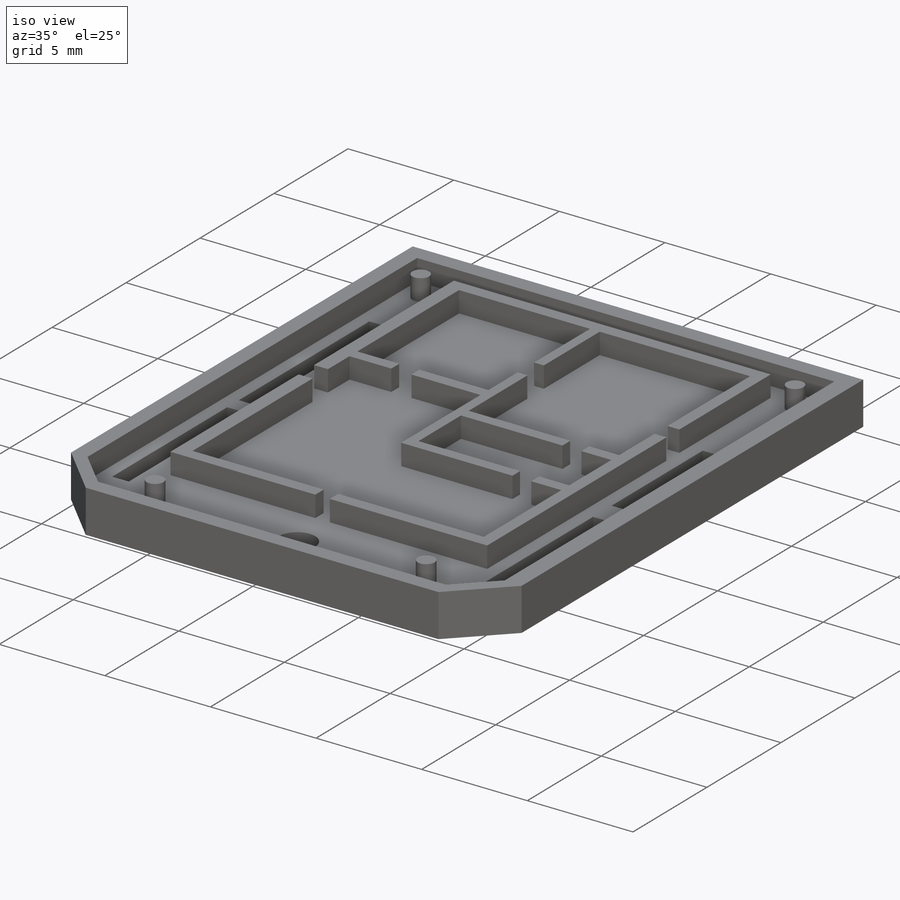
[diagram: iso view]
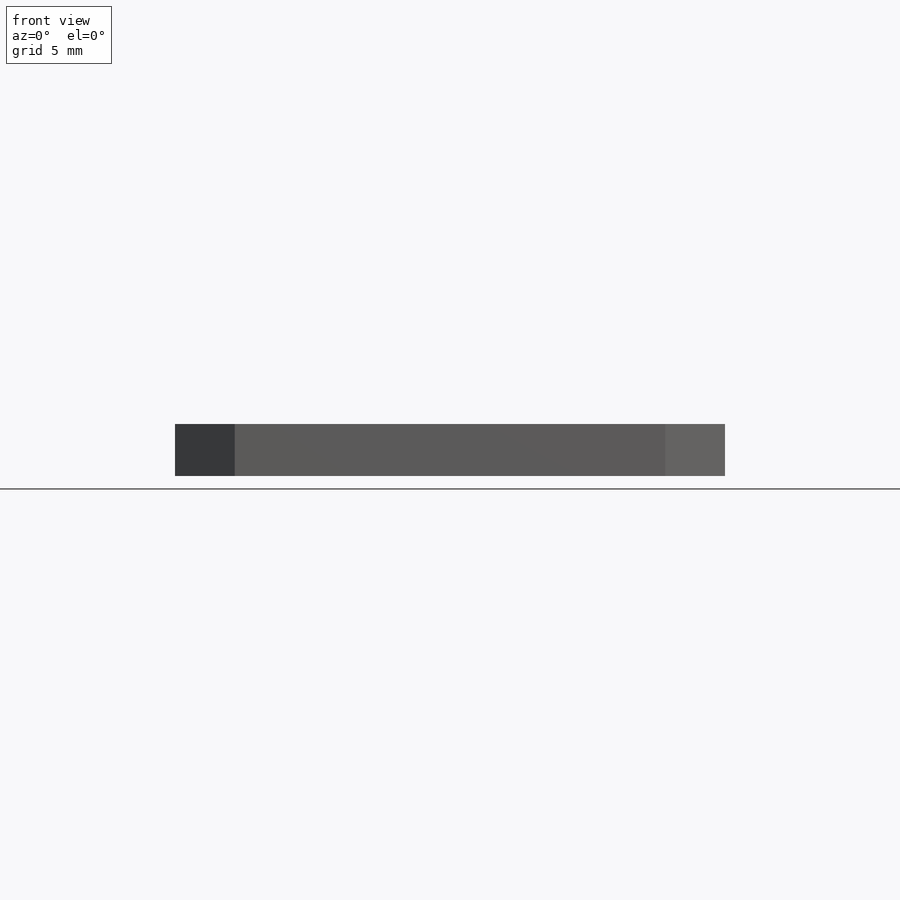
[diagram: front view]
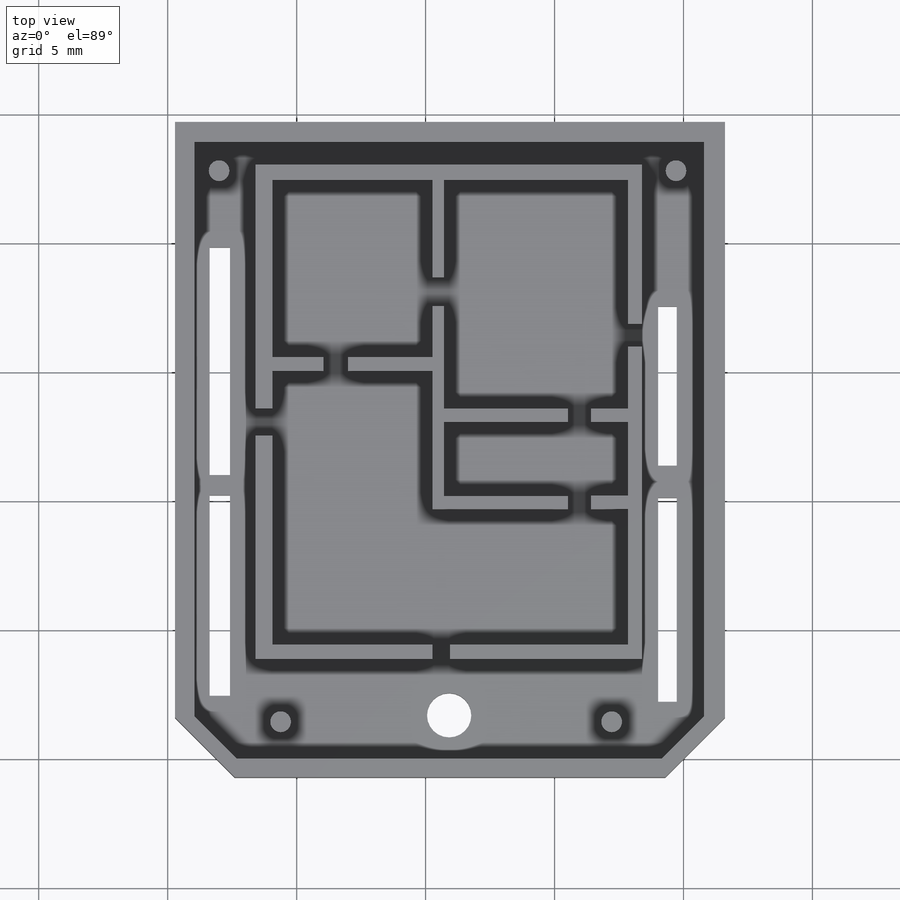
[diagram: top view]
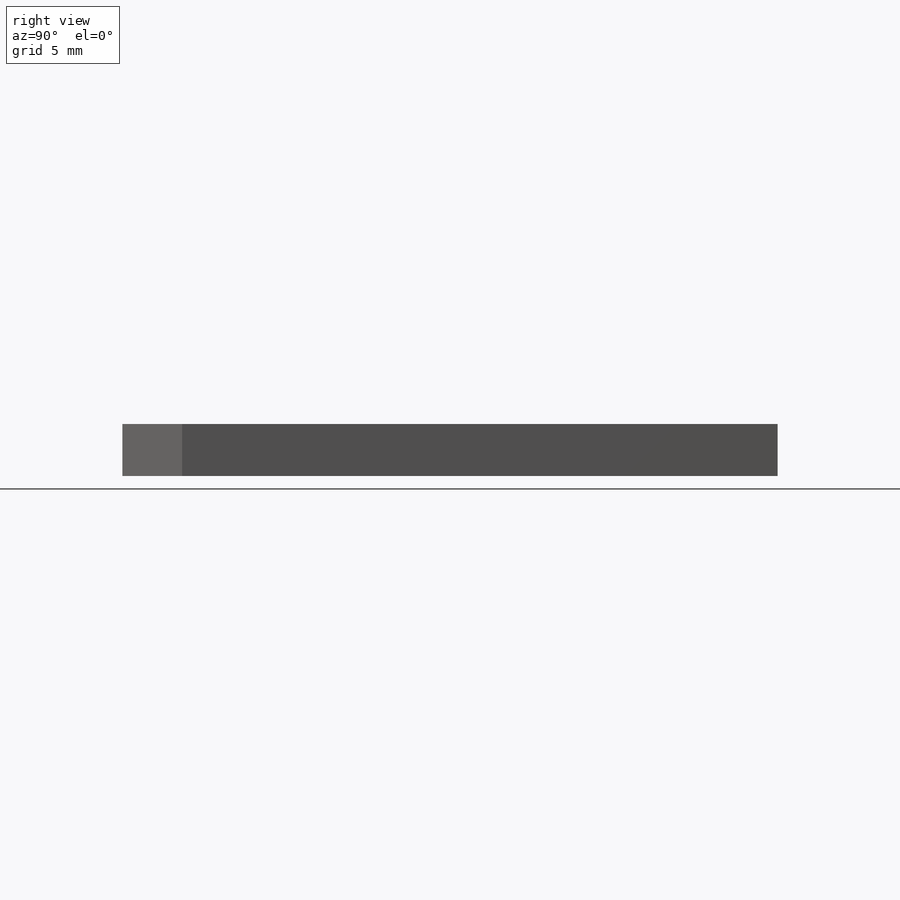
[diagram: right view]
SOLIDWORKS PART (.sldprt)
format: sldprt  version: not decoded by parser v0  size: 346,112 bytes
history: native  units: mm
features: sketch x6, extrude x3, cut_extrude x3, material x1 (+12 scaffold rows collapsed)
feature tree (25):
  scaffold x12  (default folders/planes/origin — collapsed)
  material  "Material <not specified>"
  sketch  "Sketch1"
  extrude  "Boss-Extrude1"  Depth=2.015361mm
  sketch  "Sketch13"
  cut_extrude  "Cut-Extrude4"  Depth=1mm
  sketch  "Sketch14"
  cut_extrude  "Cut-Extrude8"  Depth=2mm
  sketch  "Sketch16"
  cut_extrude  "Cut-Extrude9"  Depth=2mm
  sketch  "Sketch17"
  extrude  "Boss-Extrude5"  Depth=1mm
  sketch  "Sketch18"
  extrude  "Boss-Extrude6"  Depth=1mm
decode coverage: 6 of 12 modeling features carry decoded parameters
note: suppression state not decoded; provenance and decode notes live in map.json
